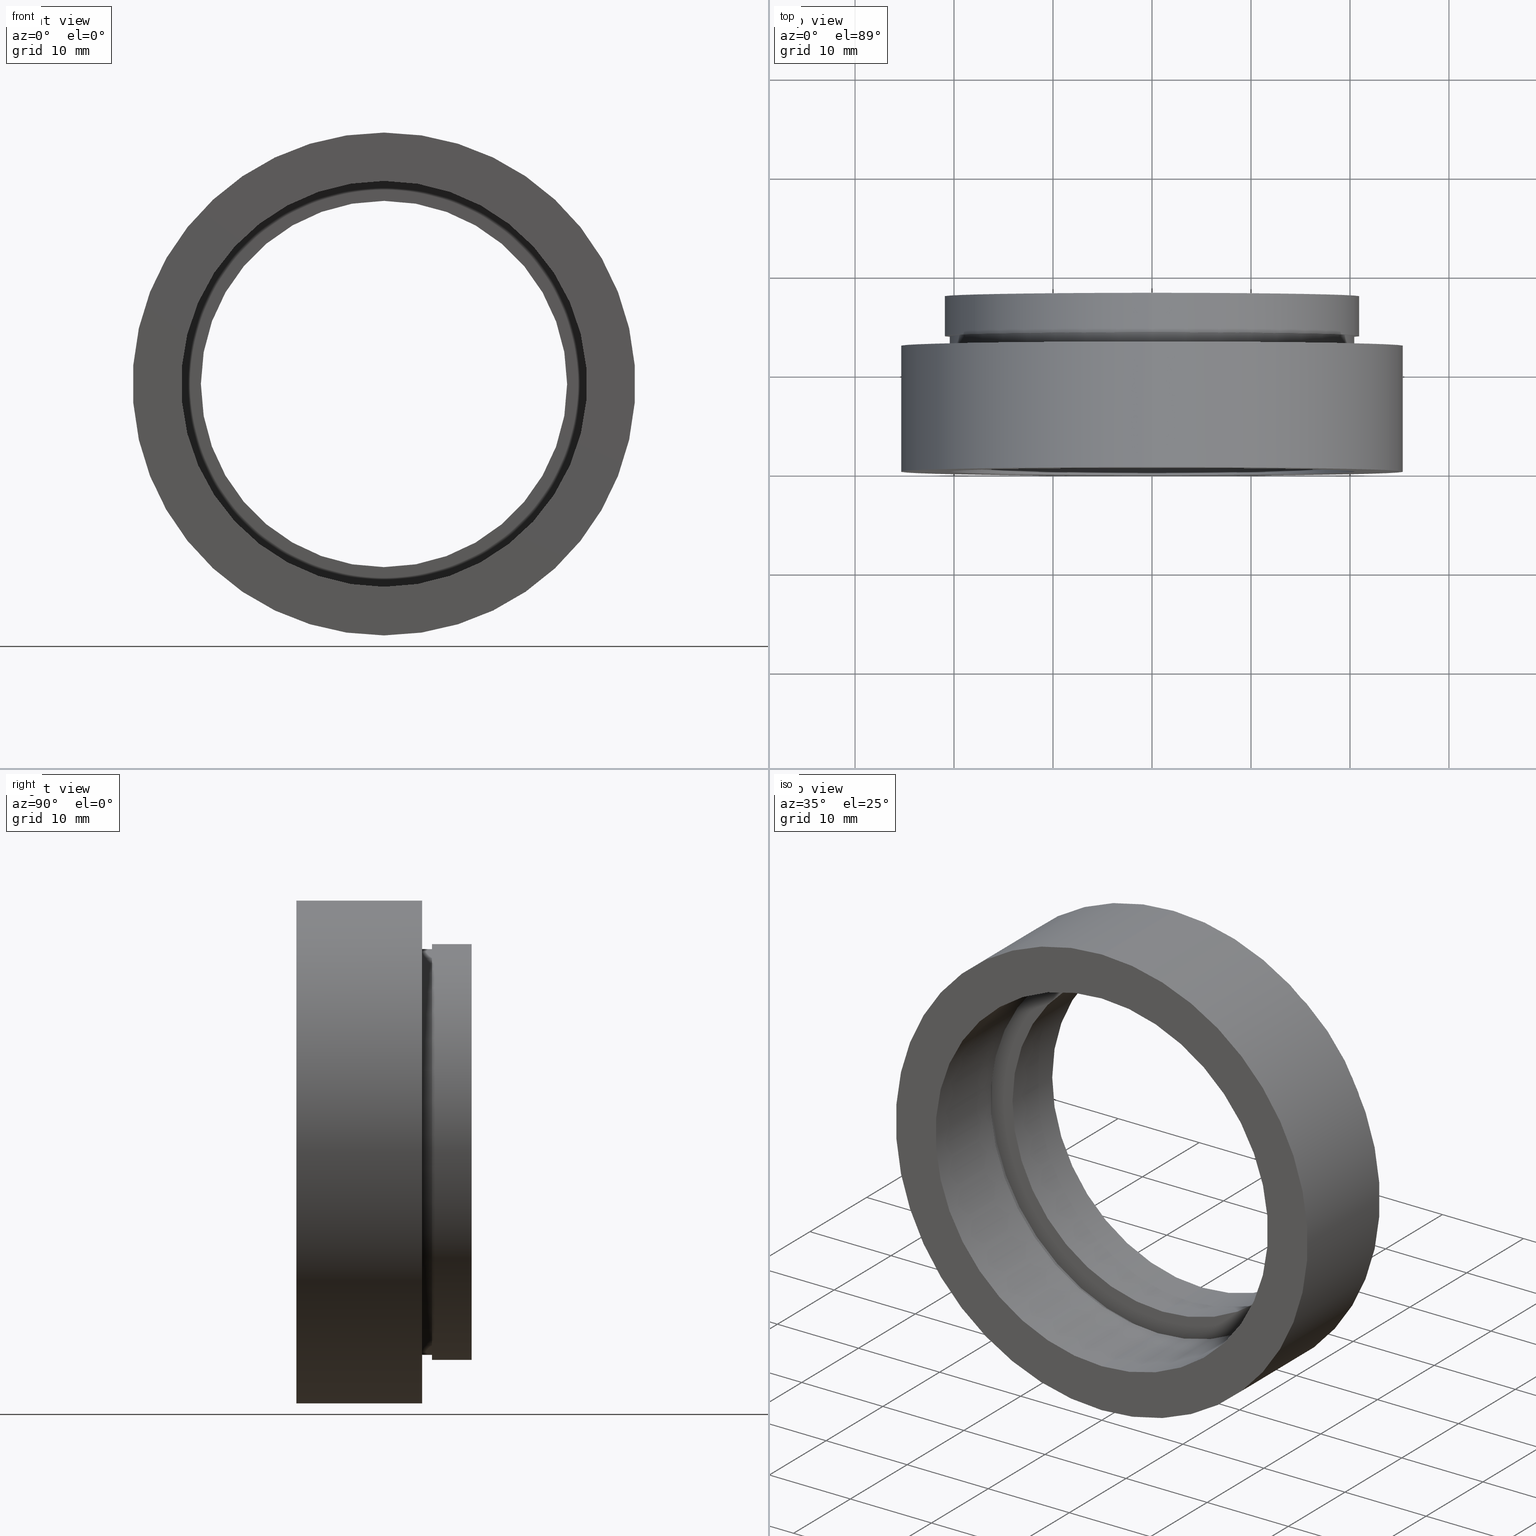
[diagram: canonical four-view strip — front | top / right | iso, engineering-drawing reading convention]
A machine part, canonical four-view strip (front | top / right | iso — engineering-drawing reading convention). The complete STEP part file that produces these views, byte-faithful:
ISO-10303-21;
HEADER;
FILE_DESCRIPTION (( 'STEP AP214' ),
    '1' );
FILE_NAME ('503026.STEP',
    '2019-09-05T05:59:30',
    ( '' ),
    ( '' ),
    'SwSTEP 2.0',
    'SolidWorks 2016',
    '' );
FILE_SCHEMA (( 'AUTOMOTIVE_DESIGN' ));
ENDSEC;

DATA;
#1 = DIRECTION ( 'NONE',  ( 0.0000000000000000000, 0.0000000000000000000, 1.000000000000000000 ) ) ;
#2 = DIRECTION ( 'NONE',  ( 0.0000000000000000000, 0.0000000000000000000, 1.000000000000000000 ) ) ;
#3 = CARTESIAN_POINT ( 'NONE',  ( 0.0000000000000000000, 17.69999999999999200, 18.50000000000001800 ) ) ;
#4 = PRESENTATION_STYLE_ASSIGNMENT (( #258 ) ) ;
#5 = DIRECTION ( 'NONE',  ( 0.0000000000000000000, 0.0000000000000000000, 1.000000000000000000 ) ) ;
#6 = ORIENTED_EDGE ( 'NONE', *, *, #236, .T. ) ;
#7 = DIRECTION ( 'NONE',  ( -0.0000000000000000000, 1.000000000000000000, -0.0000000000000000000 ) ) ;
#8 = DIRECTION ( 'NONE',  ( -0.0000000000000000000, 1.000000000000000000, -0.0000000000000000000 ) ) ;
#9 = VECTOR ( 'NONE', #102, 1000.000000000000000 ) ;
#10 = CIRCLE ( 'NONE', #569, 20.50000000000001800 ) ;
#11 = VERTEX_POINT ( 'NONE', #255 ) ;
#12 = EDGE_CURVE ( 'NONE', #325, #257, #480, .T. ) ;
#13 = AXIS2_PLACEMENT_3D ( 'NONE', #53, #532, #482 ) ;
#14 = ORIENTED_EDGE ( 'NONE', *, *, #261, .T. ) ;
#15 = ORIENTED_EDGE ( 'NONE', *, *, #182, .F. ) ;
#16 = EDGE_LOOP ( 'NONE', ( #284, #62, #272, #305 ) ) ;
#17 = CARTESIAN_POINT ( 'NONE',  ( 0.0000000000000000000, 161.3761669434274500, 0.0000000000000000000 ) ) ;
#18 = UNCERTAINTY_MEASURE_WITH_UNIT (LENGTH_MEASURE( 1.000000000000000100E-005 ), #500, 'distance_accuracy_value', 'NONE');
#19 = DIRECTION ( 'NONE',  ( 0.0000000000000000000, 0.0000000000000000000, 1.000000000000000000 ) ) ;
#20 = CARTESIAN_POINT ( 'NONE',  ( 0.0000000000000000000, 161.3761669434274500, 18.50000000000001800 ) ) ;
#21 = CYLINDRICAL_SURFACE ( 'NONE', #507, 20.50000000000002100 ) ;
#22 = LINE ( 'NONE', #20, #370 ) ;
#23 = ORIENTED_EDGE ( 'NONE', *, *, #481, .T. ) ;
#24 = EDGE_CURVE ( 'NONE', #178, #330, #186, .T. ) ;
#25 = CARTESIAN_POINT ( 'NONE',  ( 0.0000000000000000000, 13.69999999999999000, 0.0000000000000000000 ) ) ;
#26 = ADVANCED_FACE ( 'NONE', ( #528, #402 ), #201, .F. ) ;
#27 =( GEOMETRIC_REPRESENTATION_CONTEXT ( 3 ) GLOBAL_UNCERTAINTY_ASSIGNED_CONTEXT ( ( #59 ) ) GLOBAL_UNIT_ASSIGNED_CONTEXT ( ( #477, #181, #433 ) ) REPRESENTATION_CONTEXT ( 'NONE', 'WORKASPACE' ) );
#28 = CARTESIAN_POINT ( 'NONE',  ( 2.510525938252076500E-015, -2.775557561562891400E-014, -20.50000000000002100 ) ) ;
#29 = DIRECTION ( 'NONE',  ( -0.0000000000000000000, 1.000000000000000000, -0.0000000000000000000 ) ) ;
#30 = ORIENTED_EDGE ( 'NONE', *, *, #607, .F. ) ;
#31 = FILL_AREA_STYLE_COLOUR ( '', #61 ) ;
#32 = EDGE_CURVE ( 'NONE', #158, #435, #344, .T. ) ;
#33 = CARTESIAN_POINT ( 'NONE',  ( 0.0000000000000000000, -2.775557561562891400E-014, 0.0000000000000000000 ) ) ;
#34 = ADVANCED_FACE ( 'NONE', ( #150 ), #596, .T. ) ;
#35 = DIRECTION ( 'NONE',  ( -0.0000000000000000000, 1.000000000000000000, -0.0000000000000000000 ) ) ;
#36 = PLANE ( 'NONE',  #143 ) ;
#37 = CIRCLE ( 'NONE', #173, 21.00000000000001800 ) ;
#38 = CARTESIAN_POINT ( 'NONE',  ( 2.510525938252076100E-015, 161.3761669434274500, -20.50000000000001800 ) ) ;
#39 = UNCERTAINTY_MEASURE_WITH_UNIT (LENGTH_MEASURE( 1.000000000000000100E-005 ), #339, 'distance_accuracy_value', 'NONE');
#40 = EDGE_LOOP ( 'NONE', ( #42, #458, #345, #199 ) ) ;
#41 = ORIENTED_EDGE ( 'NONE', *, *, #583, .F. ) ;
#42 = ORIENTED_EDGE ( 'NONE', *, *, #391, .F. ) ;
#43 = DIRECTION ( 'NONE',  ( 0.0000000000000000000, 0.0000000000000000000, 1.000000000000000000 ) ) ;
#44 = DIRECTION ( 'NONE',  ( -0.0000000000000000000, 1.000000000000000000, -0.0000000000000000000 ) ) ;
#45 = FACE_OUTER_BOUND ( 'NONE', #142, .T. ) ;
#46 = DIRECTION ( 'NONE',  ( 0.0000000000000000000, 0.0000000000000000000, 1.000000000000000000 ) ) ;
#47 = SURFACE_STYLE_FILL_AREA ( #184 ) ;
#48 = CARTESIAN_POINT ( 'NONE',  ( 0.0000000000000000000, 17.69999999999999200, 21.00000000000001800 ) ) ;
#49 = EDGE_CURVE ( 'NONE', #251, #212, #434, .T. ) ;
#50 = ORIENTED_EDGE ( 'NONE', *, *, #32, .T. ) ;
#51 = CARTESIAN_POINT ( 'NONE',  ( 2.571758278209444000E-015, 161.3761669434274500, -21.00000000000001800 ) ) ;
#52 = DIRECTION ( 'NONE',  ( 0.0000000000000000000, 0.0000000000000000000, 1.000000000000000000 ) ) ;
#53 = CARTESIAN_POINT ( 'NONE',  ( 0.0000000000000000000, 0.0000000000000000000, 0.0000000000000000000 ) ) ;
#54 = DIRECTION ( 'NONE',  ( -0.0000000000000000000, 1.000000000000000000, -0.0000000000000000000 ) ) ;
#55 = DIRECTION ( 'NONE',  ( -0.0000000000000000000, 1.000000000000000000, -0.0000000000000000000 ) ) ;
#56 = DIRECTION ( 'NONE',  ( -0.0000000000000000000, 1.000000000000000000, -0.0000000000000000000 ) ) ;
#57 = CARTESIAN_POINT ( 'NONE',  ( 3.110602869834279600E-015, -2.775557561562891400E-014, -25.40000000000002000 ) ) ;
#58 = VERTEX_POINT ( 'NONE', #358 ) ;
#59 = UNCERTAINTY_MEASURE_WITH_UNIT (LENGTH_MEASURE( 1.000000000000000100E-005 ), #477, 'distance_accuracy_value', 'NONE');
#60 = FACE_OUTER_BOUND ( 'NONE', #447, .T. ) ;
#61 = COLOUR_RGB ( '',1.000000000000000000, 1.000000000000000000, 1.000000000000000000 ) ;
#62 = ORIENTED_EDGE ( 'NONE', *, *, #159, .F. ) ;
#63 = CIRCLE ( 'NONE', #425, 20.50000000000001800 ) ;
#64 = EDGE_LOOP ( 'NONE', ( #444, #537 ) ) ;
#65 = EDGE_CURVE ( 'NONE', #330, #178, #63, .T. ) ;
#66 = FILL_AREA_STYLE ('',( #354 ) ) ;
#67 = COLOUR_RGB ( '',1.000000000000000000, 1.000000000000000000, 1.000000000000000000 ) ;
#68 = ORIENTED_EDGE ( 'NONE', *, *, #182, .T. ) ;
#69 = DIRECTION ( 'NONE',  ( 0.0000000000000000000, 0.0000000000000000000, 1.000000000000000000 ) ) ;
#70 = ADVANCED_FACE ( 'NONE', ( #395 ), #387, .F. ) ;
#71 = FILL_AREA_STYLE ('',( #164 ) ) ;
#72 = CARTESIAN_POINT ( 'NONE',  ( 0.0000000000000000000, -2.775557561562891400E-014, 0.0000000000000000000 ) ) ;
#73 = ORIENTED_EDGE ( 'NONE', *, *, #65, .F. ) ;
#74 = ADVANCED_FACE ( 'NONE', ( #45 ), #270, .T. ) ;
#75 = ORIENTED_EDGE ( 'NONE', *, *, #315, .F. ) ;
#76 = AXIS2_PLACEMENT_3D ( 'NONE', #72, #114, #208 ) ;
#77 = FILL_AREA_STYLE_COLOUR ( '', #613 ) ;
#78 = AXIS2_PLACEMENT_3D ( 'NONE', #469, #464, #171 ) ;
#79 = DIRECTION ( 'NONE',  ( 0.0000000000000000000, 0.0000000000000000000, 1.000000000000000000 ) ) ;
#80 = CARTESIAN_POINT ( 'NONE',  ( 0.0000000000000000000, 13.69999999999999000, 21.00000000000002100 ) ) ;
#81 = LINE ( 'NONE', #149, #9 ) ;
#82 = CARTESIAN_POINT ( 'NONE',  ( 0.0000000000000000000, 12.69999999999998900, 0.0000000000000000000 ) ) ;
#83 = DIRECTION ( 'NONE',  ( -0.0000000000000000000, 1.000000000000000000, -0.0000000000000000000 ) ) ;
#84 = DIRECTION ( 'NONE',  ( 0.0000000000000000000, -1.000000000000000000, 0.0000000000000000000 ) ) ;
#85 = AXIS2_PLACEMENT_3D ( 'NONE', #554, #615, #517 ) ;
#86 = DIRECTION ( 'NONE',  ( 0.0000000000000000000, 0.0000000000000000000, 1.000000000000000000 ) ) ;
#87 = CARTESIAN_POINT ( 'NONE',  ( 0.0000000000000000000, 9.699999999999986900, 0.0000000000000000000 ) ) ;
#88 = CARTESIAN_POINT ( 'NONE',  ( 0.0000000000000000000, 12.69999999999998900, 0.0000000000000000000 ) ) ;
#89 = EDGE_CURVE ( 'NONE', #196, #590, #22, .T. ) ;
#90 = APPLICATION_PROTOCOL_DEFINITION ( 'draft international standard', 'automotive_design', 1998, #234 ) ;
#91 = AXIS2_PLACEMENT_3D ( 'NONE', #429, #572, #79 ) ;
#92 = EDGE_LOOP ( 'NONE', ( #445, #508 ) ) ;
#93 = ORIENTED_EDGE ( 'NONE', *, *, #89, .F. ) ;
#94 = SURFACE_STYLE_USAGE ( .BOTH. , #478 ) ;
#95 = PLANE ( 'NONE',  #197 ) ;
#96 = AXIS2_PLACEMENT_3D ( 'NONE', #428, #521, #525 ) ;
#97 =( NAMED_UNIT ( * ) SI_UNIT ( $, .STERADIAN. ) SOLID_ANGLE_UNIT ( ) );
#98 = CARTESIAN_POINT ( 'NONE',  ( 0.0000000000000000000, 161.3761669434274500, 0.0000000000000000000 ) ) ;
#99 = DIRECTION ( 'NONE',  ( -0.0000000000000000000, 1.000000000000000000, -0.0000000000000000000 ) ) ;
#100 = CYLINDRICAL_SURFACE ( 'NONE', #573, 21.10000000000002300 ) ;
#101 = CARTESIAN_POINT ( 'NONE',  ( 0.0000000000000000000, 10.69999999999998700, 0.0000000000000000000 ) ) ;
#102 = DIRECTION ( 'NONE',  ( -0.0000000000000000000, 1.000000000000000000, -0.0000000000000000000 ) ) ;
#103 = EDGE_CURVE ( 'NONE', #498, #295, #566, .T. ) ;
#104 = VERTEX_POINT ( 'NONE', #558 ) ;
#105 = CIRCLE ( 'NONE', #452, 21.10000000000002300 ) ;
#106 = SURFACE_STYLE_FILL_AREA ( #281 ) ;
#107 = ORIENTED_EDGE ( 'NONE', *, *, #571, .T. ) ;
#108 = STYLED_ITEM ( 'NONE', ( #170 ), #70 ) ;
#109 = FACE_BOUND ( 'NONE', #446, .T. ) ;
#110 = EDGE_LOOP ( 'NONE', ( #264, #516, #179, #139 ) ) ;
#111 = ORIENTED_EDGE ( 'NONE', *, *, #222, .T. ) ;
#112 = DIRECTION ( 'NONE',  ( 0.0000000000000000000, -0.0000000000000000000, -1.000000000000000000 ) ) ;
#113 = VERTEX_POINT ( 'NONE', #28 ) ;
#114 = DIRECTION ( 'NONE',  ( -0.0000000000000000000, 1.000000000000000000, -0.0000000000000000000 ) ) ;
#115 = AXIS2_PLACEMENT_3D ( 'NONE', #290, #7, #5 ) ;
#116 = DIRECTION ( 'NONE',  ( 0.0000000000000000000, 0.0000000000000000000, 1.000000000000000000 ) ) ;
#117 = EDGE_LOOP ( 'NONE', ( #205, #356, #409, #93 ) ) ;
#118 = EDGE_CURVE ( 'NONE', #58, #210, #220, .T. ) ;
#119 = DIRECTION ( 'NONE',  ( -0.0000000000000000000, 1.000000000000000000, -0.0000000000000000000 ) ) ;
#120 = UNCERTAINTY_MEASURE_WITH_UNIT (LENGTH_MEASURE( 1.000000000000000100E-005 ), #340, 'distance_accuracy_value', 'NONE');
#121 = ADVANCED_FACE ( 'NONE', ( #155, #379 ), #36, .F. ) ;
#122 =( NAMED_UNIT ( * ) SI_UNIT ( $, .STERADIAN. ) SOLID_ANGLE_UNIT ( ) );
#123 = STYLED_ITEM ( 'NONE', ( #4 ), #135 ) ;
#124 = FILL_AREA_STYLE ('',( #77 ) ) ;
#125 = VECTOR ( 'NONE', #390, 1000.000000000000000 ) ;
#126 = SURFACE_STYLE_FILL_AREA ( #609 ) ;
#127 = DIRECTION ( 'NONE',  ( -0.0000000000000000000, 1.000000000000000000, -0.0000000000000000000 ) ) ;
#128 = VERTEX_POINT ( 'NONE', #606 ) ;
#129 = ORIENTED_EDGE ( 'NONE', *, *, #451, .F. ) ;
#130 = EDGE_CURVE ( 'NONE', #257, #325, #137, .T. ) ;
#131 = CARTESIAN_POINT ( 'NONE',  ( 2.510525938252076500E-015, 9.699999999999986900, -20.50000000000002100 ) ) ;
#132 = CARTESIAN_POINT ( 'NONE',  ( 3.110602869834279600E-015, 161.3761669434274500, -25.40000000000002000 ) ) ;
#133 = MANIFOLD_SOLID_BREP ( '��ת1', #589 ) ;
#134 = PLANE ( 'NONE',  #78 ) ;
#135 = ADVANCED_FACE ( 'NONE', ( #392 ), #168, .F. ) ;
#136 = LINE ( 'NONE', #132, #125 ) ;
#137 = CIRCLE ( 'NONE', #462, 25.40000000000002000 ) ;
#138 =( NAMED_UNIT ( * ) SI_UNIT ( $, .STERADIAN. ) SOLID_ANGLE_UNIT ( ) );
#139 = ORIENTED_EDGE ( 'NONE', *, *, #323, .F. ) ;
#140 = ORIENTED_EDGE ( 'NONE', *, *, #540, .T. ) ;
#141 = SURFACE_STYLE_USAGE ( .BOTH. , #336 ) ;
#142 = EDGE_LOOP ( 'NONE', ( #256, #14, #616, #598 ) ) ;
#143 = AXIS2_PLACEMENT_3D ( 'NONE', #211, #259, #266 ) ;
#144 = DIRECTION ( 'NONE',  ( -0.0000000000000000000, 1.000000000000000000, -0.0000000000000000000 ) ) ;
#145 =( LENGTH_UNIT ( ) NAMED_UNIT ( * ) SI_UNIT ( .MILLI., .METRE. ) );
#146 = CARTESIAN_POINT ( 'NONE',  ( 21.10000000000001900, 10.69999999999998700, 0.0000000000000000000 ) ) ;
#147 = COLOUR_RGB ( '',1.000000000000000000, 1.000000000000000000, 1.000000000000000000 ) ;
#148 = PRESENTATION_LAYER_ASSIGNMENT (  '', '', ( #108 ) ) ;
#149 = CARTESIAN_POINT ( 'NONE',  ( 2.265596578422605400E-015, 161.3761669434274500, -18.50000000000001800 ) ) ;
#150 = FACE_OUTER_BOUND ( 'NONE', #499, .T. ) ;
#151 = CARTESIAN_POINT ( 'NONE',  ( 0.0000000000000000000, 10.69999999999998700, 21.10000000000001900 ) ) ;
#152 =( NAMED_UNIT ( * ) PLANE_ANGLE_UNIT ( ) SI_UNIT ( $, .RADIAN. ) );
#153 = CIRCLE ( 'NONE', #238, 20.50000000000002100 ) ;
#154 = CIRCLE ( 'NONE', #406, 18.50000000000001800 ) ;
#155 = FACE_BOUND ( 'NONE', #403, .T. ) ;
#156 = ORIENTED_EDGE ( 'NONE', *, *, #451, .T. ) ;
#157 = ORIENTED_EDGE ( 'NONE', *, *, #578, .F. ) ;
#158 = VERTEX_POINT ( 'NONE', #80 ) ;
#159 = EDGE_CURVE ( 'NONE', #498, #419, #455, .T. ) ;
#160 = UNCERTAINTY_MEASURE_WITH_UNIT (LENGTH_MEASURE( 1.000000000000000100E-005 ), #404, 'distance_accuracy_value', 'NONE');
#161 = EDGE_LOOP ( 'NONE', ( #156, #213 ) ) ;
#162 = SURFACE_STYLE_USAGE ( .BOTH. , #454 ) ;
#163 = CARTESIAN_POINT ( 'NONE',  ( 0.0000000000000000000, 13.69999999999999000, 0.0000000000000000000 ) ) ;
#164 = FILL_AREA_STYLE_COLOUR ( '', #515 ) ;
#165 = ORIENTED_EDGE ( 'NONE', *, *, #130, .T. ) ;
#166 = CARTESIAN_POINT ( 'NONE',  ( 0.0000000000000000000, 161.3761669434274500, 0.0000000000000000000 ) ) ;
#167 = FACE_OUTER_BOUND ( 'NONE', #110, .T. ) ;
#168 = CYLINDRICAL_SURFACE ( 'NONE', #366, 18.50000000000001800 ) ;
#169 = CARTESIAN_POINT ( 'NONE',  ( 0.0000000000000000000, 12.69999999999998900, 25.40000000000001600 ) ) ;
#170 = PRESENTATION_STYLE_ASSIGNMENT (( #543 ) ) ;
#171 = DIRECTION ( 'NONE',  ( 0.0000000000000000000, 0.0000000000000000000, 1.000000000000000000 ) ) ;
#172 = ORIENTED_EDGE ( 'NONE', *, *, #323, .T. ) ;
#173 = AXIS2_PLACEMENT_3D ( 'NONE', #277, #233, #46 ) ;
#174 =( NAMED_UNIT ( * ) PLANE_ANGLE_UNIT ( ) SI_UNIT ( $, .RADIAN. ) );
#175 =( NAMED_UNIT ( * ) SI_UNIT ( $, .STERADIAN. ) SOLID_ANGLE_UNIT ( ) );
#176 = SURFACE_STYLE_FILL_AREA ( #440 ) ;
#177 = DIRECTION ( 'NONE',  ( 0.0000000000000000000, 0.0000000000000000000, 1.000000000000000000 ) ) ;
#178 = VERTEX_POINT ( 'NONE', #562 ) ;
#179 = ORIENTED_EDGE ( 'NONE', *, *, #24, .F. ) ;
#180 = AXIS2_PLACEMENT_3D ( 'NONE', #369, #565, #314 ) ;
#181 =( NAMED_UNIT ( * ) PLANE_ANGLE_UNIT ( ) SI_UNIT ( $, .RADIAN. ) );
#182 = EDGE_CURVE ( 'NONE', #257, #210, #415, .T. ) ;
#183 = VECTOR ( 'NONE', #430, 1000.000000000000000 ) ;
#184 = FILL_AREA_STYLE ('',( #289 ) ) ;
#185 = CARTESIAN_POINT ( 'NONE',  ( 0.0000000000000000000, 10.69999999999998700, 0.0000000000000000000 ) ) ;
#186 = CIRCLE ( 'NONE', #350, 20.50000000000001800 ) ;
#187 = DIRECTION ( 'NONE',  ( 0.0000000000000000000, 0.0000000000000000000, 1.000000000000000000 ) ) ;
#188 = DIRECTION ( 'NONE',  ( -0.0000000000000000000, 1.000000000000000000, -0.0000000000000000000 ) ) ;
#189 = SURFACE_SIDE_STYLE ('',( #47 ) ) ;
#190 = DIRECTION ( 'NONE',  ( 0.0000000000000000000, 0.0000000000000000000, 1.000000000000000000 ) ) ;
#191 = APPLICATION_PROTOCOL_DEFINITION ( 'draft international standard', 'automotive_design', 1998, #585 ) ;
#192 = PRESENTATION_STYLE_ASSIGNMENT (( #162 ) ) ;
#193 = DIRECTION ( 'NONE',  ( 0.0000000000000000000, 0.0000000000000000000, 1.000000000000000000 ) ) ;
#194 = EDGE_CURVE ( 'NONE', #419, #498, #105, .T. ) ;
#195 = SURFACE_STYLE_FILL_AREA ( #124 ) ;
#196 = VERTEX_POINT ( 'NONE', #511 ) ;
#197 = AXIS2_PLACEMENT_3D ( 'NONE', #146, #437, #193 ) ;
#198 = CIRCLE ( 'NONE', #278, 20.50000000000002100 ) ;
#199 = ORIENTED_EDGE ( 'NONE', *, *, #501, .T. ) ;
#200 = AXIS2_PLACEMENT_3D ( 'NONE', #237, #99, #574 ) ;
#201 = PLANE ( 'NONE',  #357 ) ;
#202 = CIRCLE ( 'NONE', #552, 21.10000000000001900 ) ;
#203 =( NAMED_UNIT ( * ) PLANE_ANGLE_UNIT ( ) SI_UNIT ( $, .RADIAN. ) );
#204 = AXIS2_PLACEMENT_3D ( 'NONE', #372, #436, #1 ) ;
#205 = ORIENTED_EDGE ( 'NONE', *, *, #612, .F. ) ;
#206 = DIRECTION ( 'NONE',  ( -0.0000000000000000000, 1.000000000000000000, -0.0000000000000000000 ) ) ;
#207 =( GEOMETRIC_REPRESENTATION_CONTEXT ( 3 ) GLOBAL_UNCERTAINTY_ASSIGNED_CONTEXT ( ( #492 ) ) GLOBAL_UNIT_ASSIGNED_CONTEXT ( ( #215, #174, #175 ) ) REPRESENTATION_CONTEXT ( 'NONE', 'WORKASPACE' ) );
#208 = DIRECTION ( 'NONE',  ( 0.0000000000000000000, 0.0000000000000000000, 1.000000000000000000 ) ) ;
#209 = LINE ( 'NONE', #38, #244 ) ;
#210 = VERTEX_POINT ( 'NONE', #169 ) ;
#211 = CARTESIAN_POINT ( 'NONE',  ( 20.50000000000001800, 12.69999999999998500, 0.0000000000000000000 ) ) ;
#212 = VERTEX_POINT ( 'NONE', #321 ) ;
#213 = ORIENTED_EDGE ( 'NONE', *, *, #118, .T. ) ;
#214 = AXIS2_PLACEMENT_3D ( 'NONE', #291, #484, #335 ) ;
#215 =( LENGTH_UNIT ( ) NAMED_UNIT ( * ) SI_UNIT ( .MILLI., .METRE. ) );
#216 = SURFACE_SIDE_STYLE ('',( #126 ) ) ;
#217 = ADVANCED_BREP_SHAPE_REPRESENTATION ( '503026', ( #133, #13 ), #352 ) ;
#218 = LINE ( 'NONE', #317, #468 ) ;
#219 = SURFACE_STYLE_USAGE ( .BOTH. , #470 ) ;
#220 = CIRCLE ( 'NONE', #180, 25.40000000000001600 ) ;
#221 = VERTEX_POINT ( 'NONE', #474 ) ;
#222 = EDGE_CURVE ( 'NONE', #212, #570, #260, .T. ) ;
#223 = DIRECTION ( 'NONE',  ( 0.0000000000000000000, 0.0000000000000000000, 1.000000000000000000 ) ) ;
#224 = ORIENTED_EDGE ( 'NONE', *, *, #501, .F. ) ;
#225 = CARTESIAN_POINT ( 'NONE',  ( 2.265596578422605400E-015, 17.69999999999999200, -18.50000000000001800 ) ) ;
#226 = DIRECTION ( 'NONE',  ( -0.0000000000000000000, 1.000000000000000000, -0.0000000000000000000 ) ) ;
#227 = PRODUCT_DEFINITION_CONTEXT ( 'detailed design', #234, 'design' ) ;
#228 = AXIS2_PLACEMENT_3D ( 'NONE', #82, #226, #223 ) ;
#229 = LINE ( 'NONE', #320, #556 ) ;
#230 = DIRECTION ( 'NONE',  ( 0.0000000000000000000, 0.0000000000000000000, 1.000000000000000000 ) ) ;
#231 = ORIENTED_EDGE ( 'NONE', *, *, #65, .T. ) ;
#232 = AXIS2_PLACEMENT_3D ( 'NONE', #87, #334, #279 ) ;
#233 = DIRECTION ( 'NONE',  ( -0.0000000000000000000, 1.000000000000000000, -0.0000000000000000000 ) ) ;
#234 = APPLICATION_CONTEXT ( 'automotive_design' ) ;
#235 =( NAMED_UNIT ( * ) SI_UNIT ( $, .STERADIAN. ) SOLID_ANGLE_UNIT ( ) );
#236 = EDGE_CURVE ( 'NONE', #325, #58, #136, .T. ) ;
#237 = CARTESIAN_POINT ( 'NONE',  ( 0.0000000000000000000, 17.69999999999999200, 0.0000000000000000000 ) ) ;
#238 = AXIS2_PLACEMENT_3D ( 'NONE', #33, #35, #177 ) ;
#239 = PRESENTATION_STYLE_ASSIGNMENT (( #219 ) ) ;
#240 = CARTESIAN_POINT ( 'NONE',  ( 0.0000000000000000000, 161.3761669434274500, 0.0000000000000000000 ) ) ;
#241 = VERTEX_POINT ( 'NONE', #225 ) ;
#242 = CARTESIAN_POINT ( 'NONE',  ( 2.510525938252076100E-015, 13.69999999999999000, -20.50000000000001800 ) ) ;
#243 = FACE_OUTER_BOUND ( 'NONE', #64, .T. ) ;
#244 = VECTOR ( 'NONE', #144, 1000.000000000000000 ) ;
#245 = COLOUR_RGB ( '',1.000000000000000000, 1.000000000000000000, 1.000000000000000000 ) ;
#246 = ORIENTED_EDGE ( 'NONE', *, *, #612, .T. ) ;
#247 = EDGE_LOOP ( 'NONE', ( #294, #550 ) ) ;
#248 = EDGE_CURVE ( 'NONE', #196, #104, #347, .T. ) ;
#249 = AXIS2_PLACEMENT_3D ( 'NONE', #561, #262, #381 ) ;
#250 = STYLED_ITEM ( 'NONE', ( #239 ), #133 ) ;
#251 = VERTEX_POINT ( 'NONE', #518 ) ;
#252 = DIRECTION ( 'NONE',  ( 0.0000000000000000000, 0.0000000000000000000, 1.000000000000000000 ) ) ;
#253 = ORIENTED_EDGE ( 'NONE', *, *, #24, .T. ) ;
#254 = EDGE_CURVE ( 'NONE', #221, #330, #209, .T. ) ;
#255 = CARTESIAN_POINT ( 'NONE',  ( 2.584004746200917400E-015, 10.69999999999998700, -21.10000000000001900 ) ) ;
#256 = ORIENTED_EDGE ( 'NONE', *, *, #292, .F. ) ;
#257 = VERTEX_POINT ( 'NONE', #479 ) ;
#258 = SURFACE_STYLE_USAGE ( .BOTH. , #216 ) ;
#259 = DIRECTION ( 'NONE',  ( 0.0000000000000000000, -1.000000000000000000, 0.0000000000000000000 ) ) ;
#260 = CIRCLE ( 'NONE', #232, 20.50000000000002100 ) ;
#261 = EDGE_CURVE ( 'NONE', #435, #158, #602, .T. ) ;
#262 = DIRECTION ( 'NONE',  ( -0.0000000000000000000, 1.000000000000000000, -0.0000000000000000000 ) ) ;
#263 = CARTESIAN_POINT ( 'NONE',  ( 0.0000000000000000000, 161.3761669434274500, 21.10000000000002300 ) ) ;
#264 = ORIENTED_EDGE ( 'NONE', *, *, #413, .T. ) ;
#265 = DIRECTION ( 'NONE',  ( -0.0000000000000000000, 1.000000000000000000, -0.0000000000000000000 ) ) ;
#266 = DIRECTION ( 'NONE',  ( 0.0000000000000000000, -0.0000000000000000000, -1.000000000000000000 ) ) ;
#267 = ADVANCED_FACE ( 'NONE', ( #547 ), #21, .F. ) ;
#268 = CARTESIAN_POINT ( 'NONE',  ( 18.50000000000001800, 17.69999999999998500, 0.0000000000000000000 ) ) ;
#269 = FACE_BOUND ( 'NONE', #348, .T. ) ;
#270 = CYLINDRICAL_SURFACE ( 'NONE', #306, 21.00000000000001800 ) ;
#271 = DIRECTION ( 'NONE',  ( 0.0000000000000000000, 0.0000000000000000000, 1.000000000000000000 ) ) ;
#272 = ORIENTED_EDGE ( 'NONE', *, *, #103, .T. ) ;
#273 = ORIENTED_EDGE ( 'NONE', *, *, #510, .T. ) ;
#274 = DIRECTION ( 'NONE',  ( -0.0000000000000000000, 1.000000000000000000, -0.0000000000000000000 ) ) ;
#275 = FILL_AREA_STYLE ('',( #329 ) ) ;
#276 = EDGE_CURVE ( 'NONE', #11, #295, #576, .T. ) ;
#277 = CARTESIAN_POINT ( 'NONE',  ( 0.0000000000000000000, 17.69999999999999200, 0.0000000000000000000 ) ) ;
#278 = AXIS2_PLACEMENT_3D ( 'NONE', #608, #29, #368 ) ;
#279 = DIRECTION ( 'NONE',  ( 0.0000000000000000000, 0.0000000000000000000, 1.000000000000000000 ) ) ;
#280 = CIRCLE ( 'NONE', #115, 20.50000000000002100 ) ;
#281 = FILL_AREA_STYLE ('',( #331 ) ) ;
#282 = DIRECTION ( 'NONE',  ( 0.0000000000000000000, 0.0000000000000000000, 1.000000000000000000 ) ) ;
#283 = ORIENTED_EDGE ( 'NONE', *, *, #222, .F. ) ;
#284 = ORIENTED_EDGE ( 'NONE', *, *, #540, .F. ) ;
#285 = PRESENTATION_LAYER_ASSIGNMENT (  '', '', ( #250 ) ) ;
#286 =( NAMED_UNIT ( * ) PLANE_ANGLE_UNIT ( ) SI_UNIT ( $, .RADIAN. ) );
#287 = DIRECTION ( 'NONE',  ( 0.0000000000000000000, 0.0000000000000000000, 1.000000000000000000 ) ) ;
#288 = CARTESIAN_POINT ( 'NONE',  ( 0.0000000000000000000, 161.3761669434274500, 0.0000000000000000000 ) ) ;
#289 = FILL_AREA_STYLE_COLOUR ( '', #245 ) ;
#290 = CARTESIAN_POINT ( 'NONE',  ( 0.0000000000000000000, -2.775557561562891400E-014, 0.0000000000000000000 ) ) ;
#291 = CARTESIAN_POINT ( 'NONE',  ( 0.0000000000000000000, 161.3761669434274500, 0.0000000000000000000 ) ) ;
#292 = EDGE_CURVE ( 'NONE', #435, #128, #426, .T. ) ;
#293 = CIRCLE ( 'NONE', #228, 20.50000000000001800 ) ;
#294 = ORIENTED_EDGE ( 'NONE', *, *, #130, .F. ) ;
#295 = VERTEX_POINT ( 'NONE', #151 ) ;
#296 = EDGE_LOOP ( 'NONE', ( #622, #383 ) ) ;
#297 = EDGE_LOOP ( 'NONE', ( #50, #302, #157, #371 ) ) ;
#298 = AXIS2_PLACEMENT_3D ( 'NONE', #88, #374, #271 ) ;
#299 = CYLINDRICAL_SURFACE ( 'NONE', #544, 20.50000000000001800 ) ;
#300 = FACE_OUTER_BOUND ( 'NONE', #117, .T. ) ;
#301 = VECTOR ( 'NONE', #604, 1000.000000000000000 ) ;
#302 = ORIENTED_EDGE ( 'NONE', *, *, #292, .T. ) ;
#303 = AXIS2_PLACEMENT_3D ( 'NONE', #502, #361, #307 ) ;
#304 = DIRECTION ( 'NONE',  ( -0.0000000000000000000, 1.000000000000000000, -0.0000000000000000000 ) ) ;
#305 = ORIENTED_EDGE ( 'NONE', *, *, #420, .T. ) ;
#306 = AXIS2_PLACEMENT_3D ( 'NONE', #17, #599, #116 ) ;
#307 = DIRECTION ( 'NONE',  ( 0.0000000000000000000, 0.0000000000000000000, 1.000000000000000000 ) ) ;
#308 = CARTESIAN_POINT ( 'NONE',  ( 0.0000000000000000000, 13.69999999999999000, 0.0000000000000000000 ) ) ;
#309 = FACE_OUTER_BOUND ( 'NONE', #296, .T. ) ;
#310 = DIRECTION ( 'NONE',  ( 0.0000000000000000000, 0.0000000000000000000, 1.000000000000000000 ) ) ;
#311 = ADVANCED_FACE ( 'NONE', ( #167 ), #299, .T. ) ;
#312 = PRESENTATION_LAYER_ASSIGNMENT (  '', '', ( #416 ) ) ;
#313 = ORIENTED_EDGE ( 'NONE', *, *, #194, .F. ) ;
#314 = DIRECTION ( 'NONE',  ( 0.0000000000000000000, 0.0000000000000000000, 1.000000000000000000 ) ) ;
#315 = EDGE_CURVE ( 'NONE', #251, #113, #280, .T. ) ;
#316 = ADVANCED_FACE ( 'NONE', ( #424 ), #100, .F. ) ;
#317 = CARTESIAN_POINT ( 'NONE',  ( 2.584004746200917800E-015, 161.3761669434274500, -21.10000000000002300 ) ) ;
#318 = MECHANICAL_DESIGN_GEOMETRIC_PRESENTATION_REPRESENTATION (  '', ( #123 ), #207 ) ;
#319 = COLOUR_RGB ( '',1.000000000000000000, 1.000000000000000000, 1.000000000000000000 ) ;
#320 = CARTESIAN_POINT ( 'NONE',  ( 2.510525938252076500E-015, 161.3761669434274500, -20.50000000000002100 ) ) ;
#321 = CARTESIAN_POINT ( 'NONE',  ( 0.0000000000000000000, 9.699999999999986900, 20.50000000000002100 ) ) ;
#322 = ADVANCED_FACE ( 'NONE', ( #493 ), #453, .T. ) ;
#323 = EDGE_CURVE ( 'NONE', #472, #178, #360, .T. ) ;
#324 = DIRECTION ( 'NONE',  ( 0.0000000000000000000, 0.0000000000000000000, 1.000000000000000000 ) ) ;
#325 = VERTEX_POINT ( 'NONE', #57 ) ;
#326 = PRODUCT ( '503026', '503026', '', ( #385 ) ) ;
#327 = CARTESIAN_POINT ( 'NONE',  ( 0.0000000000000000000, 9.699999999999986900, 21.10000000000002300 ) ) ;
#328 =( GEOMETRIC_REPRESENTATION_CONTEXT ( 3 ) GLOBAL_UNCERTAINTY_ASSIGNED_CONTEXT ( ( #560 ) ) GLOBAL_UNIT_ASSIGNED_CONTEXT ( ( #145, #393, #138 ) ) REPRESENTATION_CONTEXT ( 'NONE', 'WORKASPACE' ) );
#329 = FILL_AREA_STYLE_COLOUR ( '', #147 ) ;
#330 = VERTEX_POINT ( 'NONE', #242 ) ;
#331 = FILL_AREA_STYLE_COLOUR ( '', #541 ) ;
#332 = ORIENTED_EDGE ( 'NONE', *, *, #236, .F. ) ;
#333 = ORIENTED_EDGE ( 'NONE', *, *, #194, .T. ) ;
#334 = DIRECTION ( 'NONE',  ( -0.0000000000000000000, 1.000000000000000000, -0.0000000000000000000 ) ) ;
#335 = DIRECTION ( 'NONE',  ( 0.0000000000000000000, 0.0000000000000000000, 1.000000000000000000 ) ) ;
#336 = SURFACE_SIDE_STYLE ('',( #539 ) ) ;
#337 = CARTESIAN_POINT ( 'NONE',  ( 0.0000000000000000000, 161.3761669434274500, 20.50000000000001800 ) ) ;
#338 = AXIS2_PLACEMENT_3D ( 'NONE', #166, #206, #19 ) ;
#339 =( LENGTH_UNIT ( ) NAMED_UNIT ( * ) SI_UNIT ( .MILLI., .METRE. ) );
#340 =( LENGTH_UNIT ( ) NAMED_UNIT ( * ) SI_UNIT ( .MILLI., .METRE. ) );
#341 = CYLINDRICAL_SURFACE ( 'NONE', #375, 20.50000000000001800 ) ;
#342 = SURFACE_STYLE_USAGE ( .BOTH. , #189 ) ;
#343 = DIRECTION ( 'NONE',  ( -0.0000000000000000000, 1.000000000000000000, -0.0000000000000000000 ) ) ;
#344 = CIRCLE ( 'NONE', #399, 21.00000000000002100 ) ;
#345 = ORIENTED_EDGE ( 'NONE', *, *, #89, .T. ) ;
#346 =( GEOMETRIC_REPRESENTATION_CONTEXT ( 3 ) GLOBAL_UNCERTAINTY_ASSIGNED_CONTEXT ( ( #355 ) ) GLOBAL_UNIT_ASSIGNED_CONTEXT ( ( #618, #465, #122 ) ) REPRESENTATION_CONTEXT ( 'NONE', 'WORKASPACE' ) );
#347 = CIRCLE ( 'NONE', #96, 18.50000000000001800 ) ;
#348 = EDGE_LOOP ( 'NONE', ( #349, #23 ) ) ;
#349 = ORIENTED_EDGE ( 'NONE', *, *, #315, .T. ) ;
#350 = AXIS2_PLACEMENT_3D ( 'NONE', #163, #304, #597 ) ;
#351 = EDGE_LOOP ( 'NONE', ( #224, #30 ) ) ;
#352 =( GEOMETRIC_REPRESENTATION_CONTEXT ( 3 ) GLOBAL_UNCERTAINTY_ASSIGNED_CONTEXT ( ( #450 ) ) GLOBAL_UNIT_ASSIGNED_CONTEXT ( ( #488, #286, #97 ) ) REPRESENTATION_CONTEXT ( 'NONE', 'WORKASPACE' ) );
#353 = FACE_OUTER_BOUND ( 'NONE', #92, .T. ) ;
#354 = FILL_AREA_STYLE_COLOUR ( '', #319 ) ;
#355 = UNCERTAINTY_MEASURE_WITH_UNIT (LENGTH_MEASURE( 1.000000000000000100E-005 ), #618, 'distance_accuracy_value', 'NONE');
#356 = ORIENTED_EDGE ( 'NONE', *, *, #391, .T. ) ;
#357 = AXIS2_PLACEMENT_3D ( 'NONE', #459, #549, #112 ) ;
#358 = CARTESIAN_POINT ( 'NONE',  ( 3.110602869834279200E-015, 12.69999999999998900, -25.40000000000001600 ) ) ;
#359 = DIRECTION ( 'NONE',  ( -0.0000000000000000000, 1.000000000000000000, -0.0000000000000000000 ) ) ;
#360 = LINE ( 'NONE', #337, #586 ) ;
#361 = DIRECTION ( 'NONE',  ( -0.0000000000000000000, 1.000000000000000000, -0.0000000000000000000 ) ) ;
#362 = DIRECTION ( 'NONE',  ( -0.0000000000000000000, 1.000000000000000000, -0.0000000000000000000 ) ) ;
#363 = ORIENTED_EDGE ( 'NONE', *, *, #571, .F. ) ;
#364 = ORIENTED_EDGE ( 'NONE', *, *, #276, .T. ) ;
#365 = ADVANCED_FACE ( 'NONE', ( #309, #109 ), #95, .F. ) ;
#366 = AXIS2_PLACEMENT_3D ( 'NONE', #427, #127, #324 ) ;
#367 = STYLED_ITEM ( 'NONE', ( #192 ), #74 ) ;
#368 = DIRECTION ( 'NONE',  ( 0.0000000000000000000, 0.0000000000000000000, 1.000000000000000000 ) ) ;
#369 = CARTESIAN_POINT ( 'NONE',  ( 0.0000000000000000000, 12.69999999999998900, 0.0000000000000000000 ) ) ;
#370 = VECTOR ( 'NONE', #119, 1000.000000000000000 ) ;
#371 = ORIENTED_EDGE ( 'NONE', *, *, #531, .F. ) ;
#372 = CARTESIAN_POINT ( 'NONE',  ( 21.00000000000002100, 13.69999999999998700, 0.0000000000000000000 ) ) ;
#373 = DIRECTION ( 'NONE',  ( -0.0000000000000000000, 1.000000000000000000, -0.0000000000000000000 ) ) ;
#374 = DIRECTION ( 'NONE',  ( -0.0000000000000000000, 1.000000000000000000, -0.0000000000000000000 ) ) ;
#375 = AXIS2_PLACEMENT_3D ( 'NONE', #288, #188, #282 ) ;
#376 = DIRECTION ( 'NONE',  ( -0.0000000000000000000, 1.000000000000000000, -0.0000000000000000000 ) ) ;
#377 = ADVANCED_FACE ( 'NONE', ( #60 ), #564, .F. ) ;
#378 = CARTESIAN_POINT ( 'NONE',  ( 0.0000000000000000000, 161.3761669434274500, 0.0000000000000000000 ) ) ;
#379 = FACE_OUTER_BOUND ( 'NONE', #161, .T. ) ;
#380 = PRESENTATION_LAYER_ASSIGNMENT (  '', '', ( #526 ) ) ;
#381 = DIRECTION ( 'NONE',  ( 0.0000000000000000000, 0.0000000000000000000, 1.000000000000000000 ) ) ;
#382 = ORIENTED_EDGE ( 'NONE', *, *, #583, .T. ) ;
#383 = ORIENTED_EDGE ( 'NONE', *, *, #276, .F. ) ;
#384 = CARTESIAN_POINT ( 'NONE',  ( 0.0000000000000000000, 12.69999999999998900, 0.0000000000000000000 ) ) ;
#385 = PRODUCT_CONTEXT ( 'NONE', #585, 'mechanical' ) ;
#386 = AXIS2_PLACEMENT_3D ( 'NONE', #579, #388, #438 ) ;
#387 = CYLINDRICAL_SURFACE ( 'NONE', #338, 20.50000000000002100 ) ;
#388 = DIRECTION ( 'NONE',  ( -0.0000000000000000000, 1.000000000000000000, -0.0000000000000000000 ) ) ;
#389 = PRODUCT_DEFINITION_SHAPE ( 'NONE', 'NONE',  #600 ) ;
#390 = DIRECTION ( 'NONE',  ( -0.0000000000000000000, 1.000000000000000000, -0.0000000000000000000 ) ) ;
#391 = EDGE_CURVE ( 'NONE', #104, #241, #81, .T. ) ;
#392 = FACE_OUTER_BOUND ( 'NONE', #40, .T. ) ;
#393 =( NAMED_UNIT ( * ) PLANE_ANGLE_UNIT ( ) SI_UNIT ( $, .RADIAN. ) );
#394 = ORIENTED_EDGE ( 'NONE', *, *, #510, .F. ) ;
#395 = FACE_OUTER_BOUND ( 'NONE', #529, .T. ) ;
#396 = ORIENTED_EDGE ( 'NONE', *, *, #49, .T. ) ;
#397 = SURFACE_STYLE_USAGE ( .BOTH. , #530 ) ;
#398 =( NAMED_UNIT ( * ) PLANE_ANGLE_UNIT ( ) SI_UNIT ( $, .RADIAN. ) );
#399 = AXIS2_PLACEMENT_3D ( 'NONE', #25, #362, #252 ) ;
#400 = FACE_BOUND ( 'NONE', #351, .T. ) ;
#401 = SHAPE_DEFINITION_REPRESENTATION ( #389, #217 ) ;
#402 = FACE_OUTER_BOUND ( 'NONE', #490, .T. ) ;
#403 = EDGE_LOOP ( 'NONE', ( #591, #41 ) ) ;
#404 =( LENGTH_UNIT ( ) NAMED_UNIT ( * ) SI_UNIT ( .MILLI., .METRE. ) );
#405 =( NAMED_UNIT ( * ) SI_UNIT ( $, .STERADIAN. ) SOLID_ANGLE_UNIT ( ) );
#406 = AXIS2_PLACEMENT_3D ( 'NONE', #185, #485, #432 ) ;
#407 = CYLINDRICAL_SURFACE ( 'NONE', #523, 25.40000000000002000 ) ;
#408 = VERTEX_POINT ( 'NONE', #48 ) ;
#409 = ORIENTED_EDGE ( 'NONE', *, *, #607, .T. ) ;
#410 = PRESENTATION_LAYER_ASSIGNMENT (  '', '', ( #603 ) ) ;
#411 = CARTESIAN_POINT ( 'NONE',  ( 0.0000000000000000000, 161.3761669434274500, 20.50000000000002100 ) ) ;
#412 = ADVANCED_FACE ( 'NONE', ( #504 ), #341, .T. ) ;
#413 = EDGE_CURVE ( 'NONE', #472, #221, #293, .T. ) ;
#414 = DIRECTION ( 'NONE',  ( -0.0000000000000000000, 1.000000000000000000, -0.0000000000000000000 ) ) ;
#415 = LINE ( 'NONE', #422, #494 ) ;
#416 = STYLED_ITEM ( 'NONE', ( #442 ), #619 ) ;
#417 = PRESENTATION_STYLE_ASSIGNMENT (( #342 ) ) ;
#418 = ADVANCED_FACE ( 'NONE', ( #534 ), #407, .T. ) ;
#419 = VERTEX_POINT ( 'NONE', #475 ) ;
#420 = EDGE_CURVE ( 'NONE', #295, #11, #202, .T. ) ;
#421 = CARTESIAN_POINT ( 'NONE',  ( 0.0000000000000000000, 161.3761669434274500, 21.00000000000001800 ) ) ;
#422 = CARTESIAN_POINT ( 'NONE',  ( 0.0000000000000000000, 161.3761669434274500, 25.40000000000002000 ) ) ;
#423 = DIRECTION ( 'NONE',  ( 0.0000000000000000000, -0.0000000000000000000, -1.000000000000000000 ) ) ;
#424 = FACE_OUTER_BOUND ( 'NONE', #16, .T. ) ;
#425 = AXIS2_PLACEMENT_3D ( 'NONE', #308, #359, #69 ) ;
#426 = LINE ( 'NONE', #51, #183 ) ;
#427 = CARTESIAN_POINT ( 'NONE',  ( 0.0000000000000000000, 161.3761669434274500, 0.0000000000000000000 ) ) ;
#428 = CARTESIAN_POINT ( 'NONE',  ( 0.0000000000000000000, 10.69999999999998700, 0.0000000000000000000 ) ) ;
#429 = CARTESIAN_POINT ( 'NONE',  ( 0.0000000000000000000, 17.69999999999999200, 0.0000000000000000000 ) ) ;
#430 = DIRECTION ( 'NONE',  ( -0.0000000000000000000, 1.000000000000000000, -0.0000000000000000000 ) ) ;
#431 = CIRCLE ( 'NONE', #200, 18.50000000000001800 ) ;
#432 = DIRECTION ( 'NONE',  ( 0.0000000000000000000, 0.0000000000000000000, 1.000000000000000000 ) ) ;
#433 =( NAMED_UNIT ( * ) SI_UNIT ( $, .STERADIAN. ) SOLID_ANGLE_UNIT ( ) );
#434 = LINE ( 'NONE', #411, #301 ) ;
#435 = VERTEX_POINT ( 'NONE', #520 ) ;
#436 = DIRECTION ( 'NONE',  ( -0.0000000000000000000, 1.000000000000000000, 0.0000000000000000000 ) ) ;
#437 = DIRECTION ( 'NONE',  ( -0.0000000000000000000, 1.000000000000000000, 0.0000000000000000000 ) ) ;
#438 = DIRECTION ( 'NONE',  ( 0.0000000000000000000, 0.0000000000000000000, 1.000000000000000000 ) ) ;
#439 = DIRECTION ( 'NONE',  ( 0.0000000000000000000, 0.0000000000000000000, 1.000000000000000000 ) ) ;
#440 = FILL_AREA_STYLE ('',( #527 ) ) ;
#441 = EDGE_CURVE ( 'NONE', #128, #408, #546, .T. ) ;
#442 = PRESENTATION_STYLE_ASSIGNMENT (( #94 ) ) ;
#443 = VECTOR ( 'NONE', #373, 1000.000000000000000 ) ;
#444 = ORIENTED_EDGE ( 'NONE', *, *, #32, .F. ) ;
#445 = ORIENTED_EDGE ( 'NONE', *, *, #578, .T. ) ;
#446 = EDGE_LOOP ( 'NONE', ( #536, #246 ) ) ;
#447 = EDGE_LOOP ( 'NONE', ( #313, #140, #364, #506 ) ) ;
#448 = MECHANICAL_DESIGN_GEOMETRIC_PRESENTATION_REPRESENTATION (  '', ( #416 ), #328 ) ;
#449 = ORIENTED_EDGE ( 'NONE', *, *, #481, .F. ) ;
#450 = UNCERTAINTY_MEASURE_WITH_UNIT (LENGTH_MEASURE( 1.000000000000000100E-005 ), #488, 'distance_accuracy_value', 'NONE');
#451 = EDGE_CURVE ( 'NONE', #210, #58, #553, .T. ) ;
#452 = AXIS2_PLACEMENT_3D ( 'NONE', #467, #414, #463 ) ;
#453 = CYLINDRICAL_SURFACE ( 'NONE', #535, 21.00000000000001800 ) ;
#454 = SURFACE_SIDE_STYLE ('',( #513 ) ) ;
#455 = CIRCLE ( 'NONE', #85, 21.10000000000002300 ) ;
#456 = EDGE_LOOP ( 'NONE', ( #363, #75, #396, #111 ) ) ;
#457 = MECHANICAL_DESIGN_GEOMETRIC_PRESENTATION_REPRESENTATION (  '', ( #367 ), #491 ) ;
#458 = ORIENTED_EDGE ( 'NONE', *, *, #248, .F. ) ;
#459 = CARTESIAN_POINT ( 'NONE',  ( 20.50000000000002100, 9.699999999999986900, 0.0000000000000000000 ) ) ;
#460 = STYLED_ITEM ( 'NONE', ( #417 ), #217 ) ;
#461 = ADVANCED_FACE ( 'NONE', ( #593, #269 ), #134, .F. ) ;
#462 = AXIS2_PLACEMENT_3D ( 'NONE', #509, #376, #310 ) ;
#463 = DIRECTION ( 'NONE',  ( 0.0000000000000000000, 0.0000000000000000000, 1.000000000000000000 ) ) ;
#464 = DIRECTION ( 'NONE',  ( -0.0000000000000000000, 1.000000000000000000, 0.0000000000000000000 ) ) ;
#465 =( NAMED_UNIT ( * ) PLANE_ANGLE_UNIT ( ) SI_UNIT ( $, .RADIAN. ) );
#466 = DIRECTION ( 'NONE',  ( -0.0000000000000000000, 1.000000000000000000, -0.0000000000000000000 ) ) ;
#467 = CARTESIAN_POINT ( 'NONE',  ( 0.0000000000000000000, 9.699999999999986900, 0.0000000000000000000 ) ) ;
#468 = VECTOR ( 'NONE', #265, 1000.000000000000000 ) ;
#469 = CARTESIAN_POINT ( 'NONE',  ( 25.40000000000002000, -1.454715626710879400E-014, 0.0000000000000000000 ) ) ;
#470 = SURFACE_SIDE_STYLE ('',( #195 ) ) ;
#471 = SURFACE_STYLE_FILL_AREA ( #71 ) ;
#472 = VERTEX_POINT ( 'NONE', #621 ) ;
#473 = PLANE ( 'NONE',  #204 ) ;
#474 = CARTESIAN_POINT ( 'NONE',  ( 2.510525938252076100E-015, 12.69999999999998900, -20.50000000000001800 ) ) ;
#475 = CARTESIAN_POINT ( 'NONE',  ( 2.584004746200917800E-015, 9.699999999999986900, -21.10000000000002300 ) ) ;
#476 = DIRECTION ( 'NONE',  ( -0.0000000000000000000, 1.000000000000000000, -0.0000000000000000000 ) ) ;
#477 =( LENGTH_UNIT ( ) NAMED_UNIT ( * ) SI_UNIT ( .MILLI., .METRE. ) );
#478 = SURFACE_SIDE_STYLE ('',( #106 ) ) ;
#479 = CARTESIAN_POINT ( 'NONE',  ( 0.0000000000000000000, -2.775557561562891400E-014, 25.40000000000002000 ) ) ;
#480 = CIRCLE ( 'NONE', #76, 25.40000000000002000 ) ;
#481 = EDGE_CURVE ( 'NONE', #113, #251, #153, .T. ) ;
#482 = DIRECTION ( 'NONE',  ( 1.000000000000000000, 0.0000000000000000000, 0.0000000000000000000 ) ) ;
#483 = MECHANICAL_DESIGN_GEOMETRIC_PRESENTATION_REPRESENTATION (  '', ( #460 ), #512 ) ;
#484 = DIRECTION ( 'NONE',  ( -0.0000000000000000000, 1.000000000000000000, -0.0000000000000000000 ) ) ;
#485 = DIRECTION ( 'NONE',  ( -0.0000000000000000000, 1.000000000000000000, -0.0000000000000000000 ) ) ;
#486 = VECTOR ( 'NONE', #466, 1000.000000000000000 ) ;
#487 = MECHANICAL_DESIGN_GEOMETRIC_PRESENTATION_REPRESENTATION (  '', ( #526 ), #27 ) ;
#488 =( LENGTH_UNIT ( ) NAMED_UNIT ( * ) SI_UNIT ( .MILLI., .METRE. ) );
#489 = DIRECTION ( 'NONE',  ( -0.0000000000000000000, 1.000000000000000000, -0.0000000000000000000 ) ) ;
#490 = EDGE_LOOP ( 'NONE', ( #588, #333 ) ) ;
#491 =( GEOMETRIC_REPRESENTATION_CONTEXT ( 3 ) GLOBAL_UNCERTAINTY_ASSIGNED_CONTEXT ( ( #18 ) ) GLOBAL_UNIT_ASSIGNED_CONTEXT ( ( #500, #545, #405 ) ) REPRESENTATION_CONTEXT ( 'NONE', 'WORKASPACE' ) );
#492 = UNCERTAINTY_MEASURE_WITH_UNIT (LENGTH_MEASURE( 1.000000000000000100E-005 ), #215, 'distance_accuracy_value', 'NONE');
#493 = FACE_OUTER_BOUND ( 'NONE', #297, .T. ) ;
#494 = VECTOR ( 'NONE', #83, 1000.000000000000000 ) ;
#495 = ORIENTED_EDGE ( 'NONE', *, *, #12, .T. ) ;
#496 = AXIS2_PLACEMENT_3D ( 'NONE', #575, #476, #43 ) ;
#497 = MECHANICAL_DESIGN_GEOMETRIC_PRESENTATION_REPRESENTATION (  '', ( #108 ), #563 ) ;
#498 = VERTEX_POINT ( 'NONE', #327 ) ;
#499 = EDGE_LOOP ( 'NONE', ( #165, #6, #129, #15 ) ) ;
#500 =( LENGTH_UNIT ( ) NAMED_UNIT ( * ) SI_UNIT ( .MILLI., .METRE. ) );
#501 = EDGE_CURVE ( 'NONE', #590, #241, #519, .T. ) ;
#502 = CARTESIAN_POINT ( 'NONE',  ( 0.0000000000000000000, 161.3761669434274500, 0.0000000000000000000 ) ) ;
#503 = PRESENTATION_LAYER_ASSIGNMENT (  '', '', ( #460 ) ) ;
#504 = FACE_OUTER_BOUND ( 'NONE', #577, .T. ) ;
#505 = SURFACE_SIDE_STYLE ('',( #471 ) ) ;
#506 = ORIENTED_EDGE ( 'NONE', *, *, #103, .F. ) ;
#507 = AXIS2_PLACEMENT_3D ( 'NONE', #378, #44, #187 ) ;
#508 = ORIENTED_EDGE ( 'NONE', *, *, #441, .T. ) ;
#509 = CARTESIAN_POINT ( 'NONE',  ( 0.0000000000000000000, -2.775557561562891400E-014, 0.0000000000000000000 ) ) ;
#510 = EDGE_CURVE ( 'NONE', #570, #212, #198, .T. ) ;
#511 = CARTESIAN_POINT ( 'NONE',  ( 0.0000000000000000000, 10.69999999999998700, 18.50000000000001800 ) ) ;
#512 =( GEOMETRIC_REPRESENTATION_CONTEXT ( 3 ) GLOBAL_UNCERTAINTY_ASSIGNED_CONTEXT ( ( #39 ) ) GLOBAL_UNIT_ASSIGNED_CONTEXT ( ( #339, #398, #524 ) ) REPRESENTATION_CONTEXT ( 'NONE', 'WORKASPACE' ) );
#513 = SURFACE_STYLE_FILL_AREA ( #66 ) ;
#514 = PRESENTATION_STYLE_ASSIGNMENT (( #141 ) ) ;
#515 = COLOUR_RGB ( '',1.000000000000000000, 1.000000000000000000, 1.000000000000000000 ) ;
#516 = ORIENTED_EDGE ( 'NONE', *, *, #254, .T. ) ;
#517 = DIRECTION ( 'NONE',  ( 0.0000000000000000000, 0.0000000000000000000, 1.000000000000000000 ) ) ;
#518 = CARTESIAN_POINT ( 'NONE',  ( 0.0000000000000000000, -2.775557561562891400E-014, 20.50000000000002100 ) ) ;
#519 = CIRCLE ( 'NONE', #249, 18.50000000000001800 ) ;
#520 = CARTESIAN_POINT ( 'NONE',  ( 2.571758278209444400E-015, 13.69999999999999000, -21.00000000000002100 ) ) ;
#521 = DIRECTION ( 'NONE',  ( -0.0000000000000000000, 1.000000000000000000, -0.0000000000000000000 ) ) ;
#522 = EDGE_LOOP ( 'NONE', ( #253, #231 ) ) ;
#523 = AXIS2_PLACEMENT_3D ( 'NONE', #581, #55, #52 ) ;
#524 =( NAMED_UNIT ( * ) SI_UNIT ( $, .STERADIAN. ) SOLID_ANGLE_UNIT ( ) );
#525 = DIRECTION ( 'NONE',  ( 0.0000000000000000000, 0.0000000000000000000, 1.000000000000000000 ) ) ;
#526 = STYLED_ITEM ( 'NONE', ( #514 ), #267 ) ;
#527 = FILL_AREA_STYLE_COLOUR ( '', #67 ) ;
#528 = FACE_BOUND ( 'NONE', #551, .T. ) ;
#529 = EDGE_LOOP ( 'NONE', ( #449, #107, #273, #559 ) ) ;
#530 = SURFACE_SIDE_STYLE ('',( #176 ) ) ;
#531 = EDGE_CURVE ( 'NONE', #158, #408, #610, .T. ) ;
#532 = DIRECTION ( 'NONE',  ( 0.0000000000000000000, 0.0000000000000000000, 1.000000000000000000 ) ) ;
#533 = CARTESIAN_POINT ( 'NONE',  ( 0.0000000000000000000, 161.3761669434274500, 0.0000000000000000000 ) ) ;
#534 = FACE_OUTER_BOUND ( 'NONE', #624, .T. ) ;
#535 = AXIS2_PLACEMENT_3D ( 'NONE', #98, #8, #2 ) ;
#536 = ORIENTED_EDGE ( 'NONE', *, *, #248, .T. ) ;
#537 = ORIENTED_EDGE ( 'NONE', *, *, #261, .F. ) ;
#538 = AXIS2_PLACEMENT_3D ( 'NONE', #101, #582, #190 ) ;
#539 = SURFACE_STYLE_FILL_AREA ( #275 ) ;
#540 = EDGE_CURVE ( 'NONE', #419, #11, #218, .T. ) ;
#541 = COLOUR_RGB ( '',1.000000000000000000, 1.000000000000000000, 1.000000000000000000 ) ;
#542 = PRODUCT_DEFINITION_FORMATION_WITH_SPECIFIED_SOURCE ( '�κ�', '', #326, .NOT_KNOWN. ) ;
#543 = SURFACE_STYLE_USAGE ( .BOTH. , #505 ) ;
#544 = AXIS2_PLACEMENT_3D ( 'NONE', #240, #489, #287 ) ;
#545 =( NAMED_UNIT ( * ) PLANE_ANGLE_UNIT ( ) SI_UNIT ( $, .RADIAN. ) );
#546 = CIRCLE ( 'NONE', #91, 21.00000000000001800 ) ;
#547 = FACE_OUTER_BOUND ( 'NONE', #456, .T. ) ;
#548 = PRESENTATION_LAYER_ASSIGNMENT (  '', '', ( #123 ) ) ;
#549 = DIRECTION ( 'NONE',  ( 0.0000000000000000000, -1.000000000000000000, 0.0000000000000000000 ) ) ;
#550 = ORIENTED_EDGE ( 'NONE', *, *, #12, .F. ) ;
#551 = EDGE_LOOP ( 'NONE', ( #283, #394 ) ) ;
#552 = AXIS2_PLACEMENT_3D ( 'NONE', #620, #568, #86 ) ;
#553 = CIRCLE ( 'NONE', #298, 25.40000000000001600 ) ;
#554 = CARTESIAN_POINT ( 'NONE',  ( 0.0000000000000000000, 9.699999999999986900, 0.0000000000000000000 ) ) ;
#555 = ADVANCED_FACE ( 'NONE', ( #400, #353 ), #614, .F. ) ;
#556 = VECTOR ( 'NONE', #274, 1000.000000000000000 ) ;
#557 = MECHANICAL_DESIGN_GEOMETRIC_PRESENTATION_REPRESENTATION (  '', ( #603 ), #592 ) ;
#558 = CARTESIAN_POINT ( 'NONE',  ( 2.265596578422605400E-015, 10.69999999999998700, -18.50000000000001800 ) ) ;
#559 = ORIENTED_EDGE ( 'NONE', *, *, #49, .F. ) ;
#560 = UNCERTAINTY_MEASURE_WITH_UNIT (LENGTH_MEASURE( 1.000000000000000100E-005 ), #145, 'distance_accuracy_value', 'NONE');
#561 = CARTESIAN_POINT ( 'NONE',  ( 0.0000000000000000000, 17.69999999999999200, 0.0000000000000000000 ) ) ;
#562 = CARTESIAN_POINT ( 'NONE',  ( 0.0000000000000000000, 13.69999999999999000, 20.50000000000001800 ) ) ;
#563 =( GEOMETRIC_REPRESENTATION_CONTEXT ( 3 ) GLOBAL_UNCERTAINTY_ASSIGNED_CONTEXT ( ( #160 ) ) GLOBAL_UNIT_ASSIGNED_CONTEXT ( ( #404, #203, #595 ) ) REPRESENTATION_CONTEXT ( 'NONE', 'WORKASPACE' ) );
#564 = CYLINDRICAL_SURFACE ( 'NONE', #214, 21.10000000000002300 ) ;
#565 = DIRECTION ( 'NONE',  ( -0.0000000000000000000, 1.000000000000000000, -0.0000000000000000000 ) ) ;
#566 = LINE ( 'NONE', #263, #443 ) ;
#567 = ADVANCED_FACE ( 'NONE', ( #243, #611 ), #473, .F. ) ;
#568 = DIRECTION ( 'NONE',  ( -0.0000000000000000000, 1.000000000000000000, -0.0000000000000000000 ) ) ;
#569 = AXIS2_PLACEMENT_3D ( 'NONE', #384, #56, #230 ) ;
#570 = VERTEX_POINT ( 'NONE', #131 ) ;
#571 = EDGE_CURVE ( 'NONE', #113, #570, #229, .T. ) ;
#572 = DIRECTION ( 'NONE',  ( -0.0000000000000000000, 1.000000000000000000, -0.0000000000000000000 ) ) ;
#573 = AXIS2_PLACEMENT_3D ( 'NONE', #533, #54, #439 ) ;
#574 = DIRECTION ( 'NONE',  ( 0.0000000000000000000, 0.0000000000000000000, 1.000000000000000000 ) ) ;
#575 = CARTESIAN_POINT ( 'NONE',  ( 0.0000000000000000000, 13.69999999999999000, 0.0000000000000000000 ) ) ;
#576 = CIRCLE ( 'NONE', #538, 21.10000000000001900 ) ;
#577 = EDGE_LOOP ( 'NONE', ( #605, #382, #172, #73 ) ) ;
#578 = EDGE_CURVE ( 'NONE', #408, #128, #37, .T. ) ;
#579 = CARTESIAN_POINT ( 'NONE',  ( 0.0000000000000000000, 161.3761669434274500, 0.0000000000000000000 ) ) ;
#580 = PRODUCT_RELATED_PRODUCT_CATEGORY ( 'part', '', ( #326 ) ) ;
#581 = CARTESIAN_POINT ( 'NONE',  ( 0.0000000000000000000, 161.3761669434274500, 0.0000000000000000000 ) ) ;
#582 = DIRECTION ( 'NONE',  ( -0.0000000000000000000, 1.000000000000000000, -0.0000000000000000000 ) ) ;
#583 = EDGE_CURVE ( 'NONE', #221, #472, #10, .T. ) ;
#584 = MECHANICAL_DESIGN_GEOMETRIC_PRESENTATION_REPRESENTATION (  '', ( #250 ), #346 ) ;
#585 = APPLICATION_CONTEXT ( 'automotive_design' ) ;
#586 = VECTOR ( 'NONE', #343, 1000.000000000000000 ) ;
#587 = CYLINDRICAL_SURFACE ( 'NONE', #386, 18.50000000000001800 ) ;
#588 = ORIENTED_EDGE ( 'NONE', *, *, #159, .T. ) ;
#589 = CLOSED_SHELL ( 'NONE', ( #377, #70, #34, #311, #322, #619, #135, #555, #74, #567, #412, #121, #418, #461, #267, #26, #316, #365 ) ) ;
#590 = VERTEX_POINT ( 'NONE', #3 ) ;
#591 = ORIENTED_EDGE ( 'NONE', *, *, #413, .F. ) ;
#592 =( GEOMETRIC_REPRESENTATION_CONTEXT ( 3 ) GLOBAL_UNCERTAINTY_ASSIGNED_CONTEXT ( ( #120 ) ) GLOBAL_UNIT_ASSIGNED_CONTEXT ( ( #340, #152, #235 ) ) REPRESENTATION_CONTEXT ( 'NONE', 'WORKASPACE' ) );
#593 = FACE_OUTER_BOUND ( 'NONE', #247, .T. ) ;
#594 = PRESENTATION_LAYER_ASSIGNMENT (  '', '', ( #367 ) ) ;
#595 =( NAMED_UNIT ( * ) SI_UNIT ( $, .STERADIAN. ) SOLID_ANGLE_UNIT ( ) );
#596 = CYLINDRICAL_SURFACE ( 'NONE', #303, 25.40000000000002000 ) ;
#597 = DIRECTION ( 'NONE',  ( 0.0000000000000000000, 0.0000000000000000000, 1.000000000000000000 ) ) ;
#598 = ORIENTED_EDGE ( 'NONE', *, *, #441, .F. ) ;
#599 = DIRECTION ( 'NONE',  ( -0.0000000000000000000, 1.000000000000000000, -0.0000000000000000000 ) ) ;
#600 = PRODUCT_DEFINITION ( 'δ֪', '', #542, #227 ) ;
#601 = PRESENTATION_STYLE_ASSIGNMENT (( #397 ) ) ;
#602 = CIRCLE ( 'NONE', #496, 21.00000000000002100 ) ;
#603 = STYLED_ITEM ( 'NONE', ( #601 ), #322 ) ;
#604 = DIRECTION ( 'NONE',  ( -0.0000000000000000000, 1.000000000000000000, -0.0000000000000000000 ) ) ;
#605 = ORIENTED_EDGE ( 'NONE', *, *, #254, .F. ) ;
#606 = CARTESIAN_POINT ( 'NONE',  ( 2.571758278209444000E-015, 17.69999999999999200, -21.00000000000001800 ) ) ;
#607 = EDGE_CURVE ( 'NONE', #241, #590, #431, .T. ) ;
#608 = CARTESIAN_POINT ( 'NONE',  ( 0.0000000000000000000, 9.699999999999986900, 0.0000000000000000000 ) ) ;
#609 = FILL_AREA_STYLE ('',( #31 ) ) ;
#610 = LINE ( 'NONE', #421, #486 ) ;
#611 = FACE_BOUND ( 'NONE', #522, .T. ) ;
#612 = EDGE_CURVE ( 'NONE', #104, #196, #154, .T. ) ;
#613 = COLOUR_RGB ( '',1.000000000000000000, 1.000000000000000000, 1.000000000000000000 ) ;
#614 = PLANE ( 'NONE',  #623 ) ;
#615 = DIRECTION ( 'NONE',  ( -0.0000000000000000000, 1.000000000000000000, -0.0000000000000000000 ) ) ;
#616 = ORIENTED_EDGE ( 'NONE', *, *, #531, .T. ) ;
#617 = ORIENTED_EDGE ( 'NONE', *, *, #118, .F. ) ;
#618 =( LENGTH_UNIT ( ) NAMED_UNIT ( * ) SI_UNIT ( .MILLI., .METRE. ) );
#619 = ADVANCED_FACE ( 'NONE', ( #300 ), #587, .F. ) ;
#620 = CARTESIAN_POINT ( 'NONE',  ( 0.0000000000000000000, 10.69999999999998700, 0.0000000000000000000 ) ) ;
#621 = CARTESIAN_POINT ( 'NONE',  ( 0.0000000000000000000, 12.69999999999998900, 20.50000000000001800 ) ) ;
#622 = ORIENTED_EDGE ( 'NONE', *, *, #420, .F. ) ;
#623 = AXIS2_PLACEMENT_3D ( 'NONE', #268, #84, #423 ) ;
#624 = EDGE_LOOP ( 'NONE', ( #332, #495, #68, #617 ) ) ;
ENDSEC;
END-ISO-10303-21;
